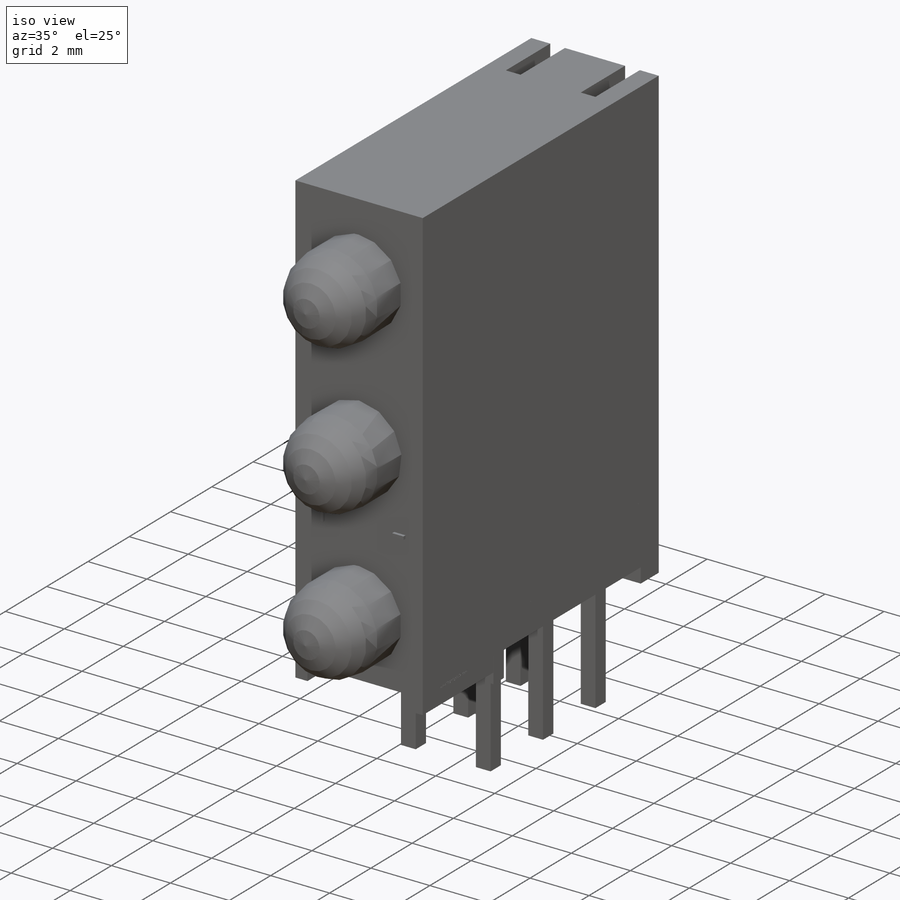
[diagram: iso view]
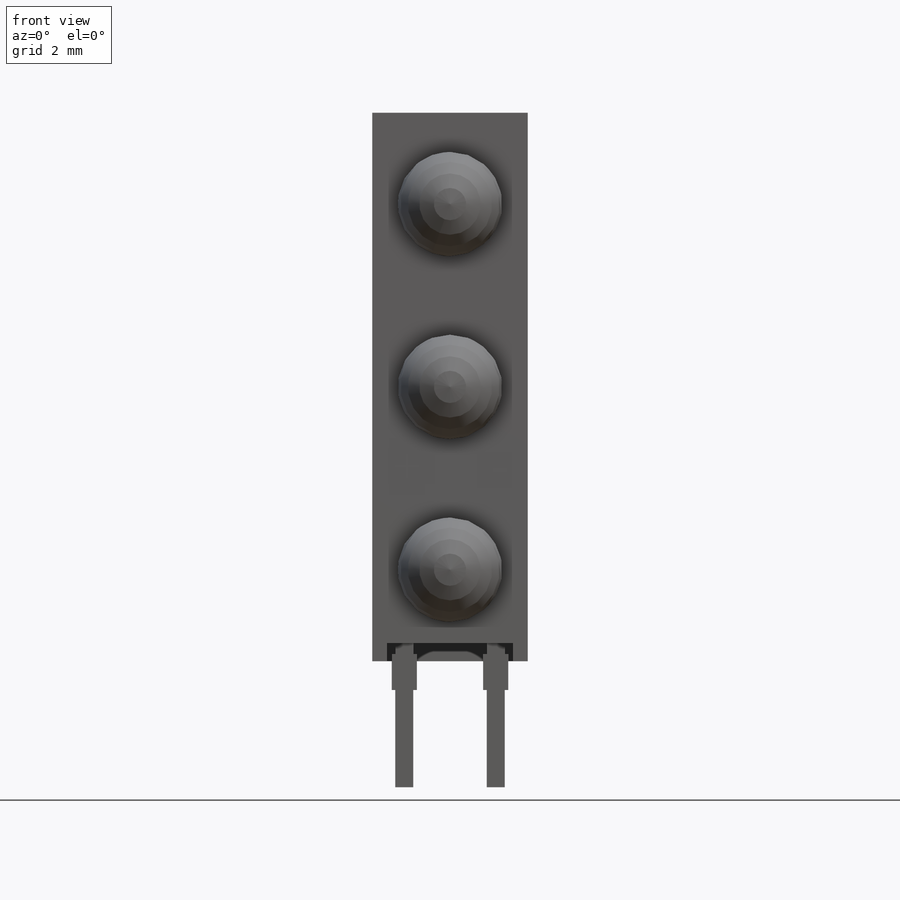
[diagram: front view]
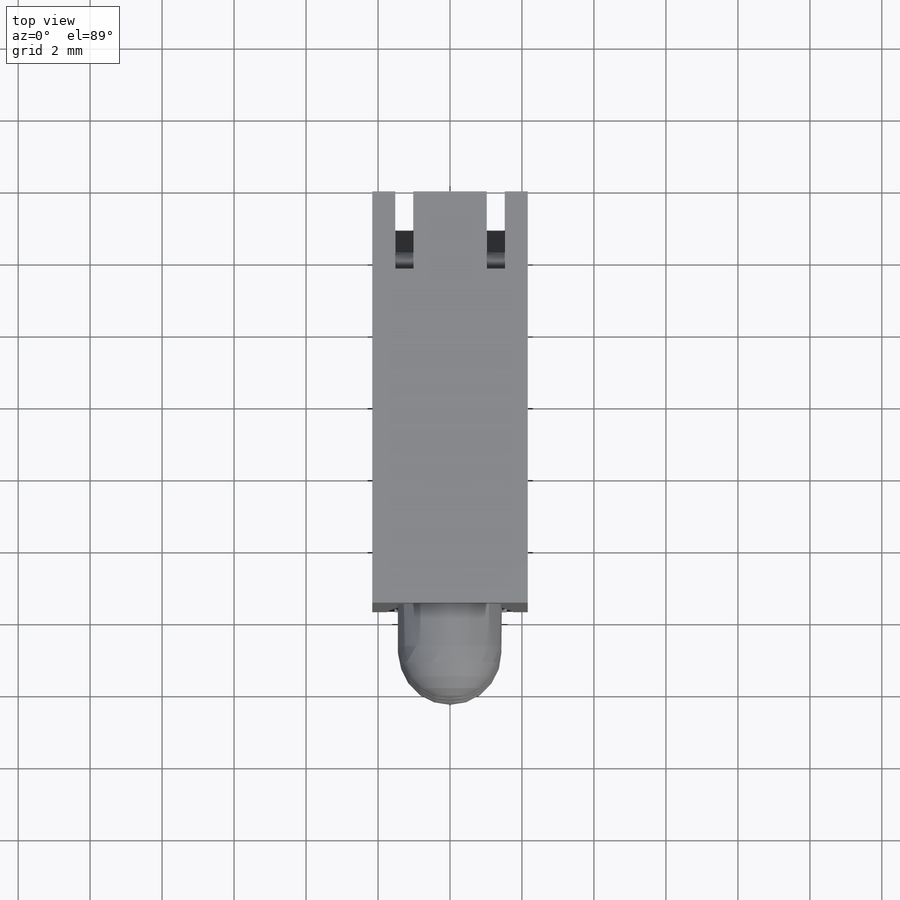
[diagram: top view]
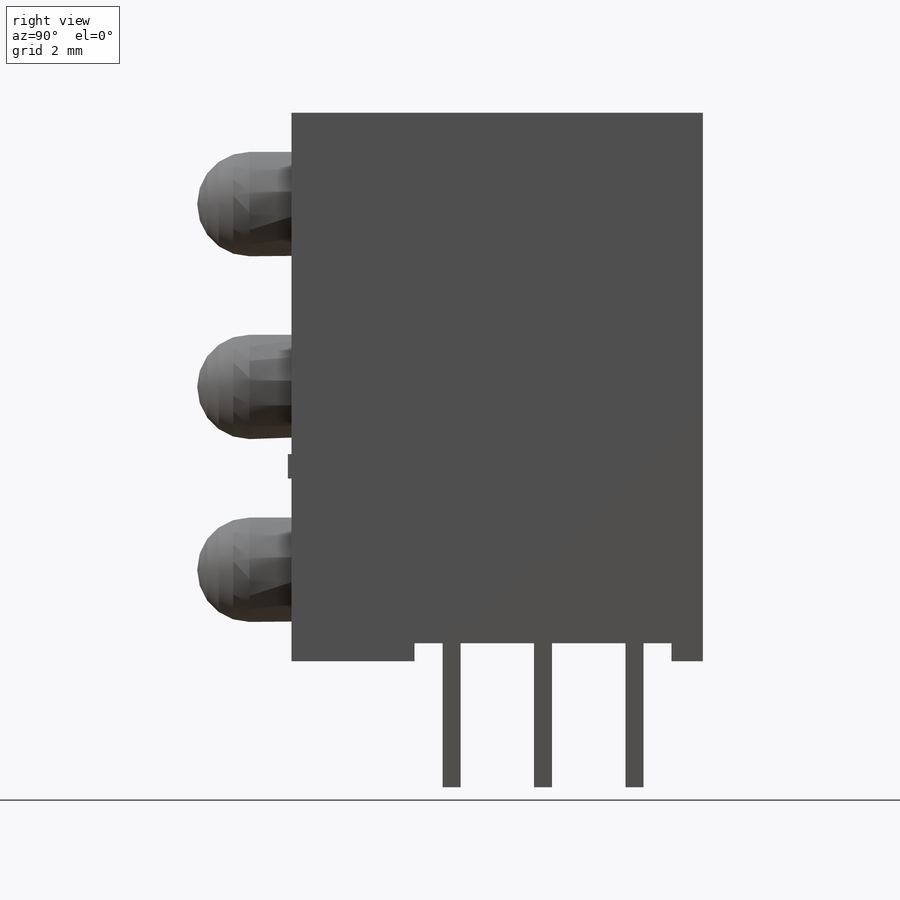
[diagram: right view]
SOLIDWORKS PART (.sldprt)
format: sldprt  version: not decoded by parser v0  size: 892,416 bytes
history: native  units: mm
features: sketch x14, extrude x8, revolve x3, cut_extrude x3, material x1, fillet x1 (+11 scaffold rows collapsed)
feature tree (41):
  scaffold x11  (default folders/planes/origin — collapsed)
  material  "Material <not specified>"
  sketch  "Sketch1"  dims[c1.D5=2.9mm c1.D6=2.9mm c1.D7=2.9mm c2.D5=2.9mm c2.D7=1.45mm c2.D9=1.45mm c2.D4=2.9mm c2.D1=11.43mm c2.D2=15.24mm c2.D3=0.5mm c3.D4=2.5mm c3.D8=3.0mm c3.D9=6.0mm c3.D10=6.0mm c3.D11=1.5mm c3.D12=7.14mm c3.D13=4.84mm c3.D14=2.5mm c3.D15=1.0mm c4.D11=1.0mm c4.D15=3.42mm c4.D14=2.0mm c4.D4=0.381mm c4.D5=15.24mm c5.D4=0.381mm c5.D6=0.381mm c6.D6=2.54deg c7.D6=5.08mm c7.D7=5.08mm c7.D8=2.54mm c7.D5=2.62mm c8.D6=2.543mm c8.D8=5.08mm c8.D9=5.08mm]
  extrude  "Extrude1"  Depth=4.32mm
  revolve  "Revolve1"  [1 undecoded]
  sketch  "Sketch1<3>"  dims[D1=360.0deg]
  revolve  "Revolve2"  [1 undecoded]
  sketch  "Sketch1<4>"  dims[D1=360.0deg]
  revolve  "Revolve3"  [1 undecoded]
  sketch  "Sketch1<5>"  dims[D1=360.0deg]
  cut_extrude  "Cut-Extrude1"  [1 undecoded]
  sketch  "Sketch1<6>"  dims[D1=3.5mm]
  extrude  "Extrude2"  [1 undecoded]
  sketch  "Sketch1<7>"  dims[D1=4.32mm]
  sketch  "Sketch2"  dims[c1.D1=9.0mm c1.D2=2.54mm c1.D3=2.54mm c1.D4=0.5mm c1.D5=0.5mm c2.D2=2.54mm c2.D3=2.54mm c2.D6=2.54mm c2.D1=4.45mm c3.D6=2.54mm]
  cut_extrude  "Cut-Extrude2"  [1 undecoded]
  extrude  "Extrude5"  [1 undecoded]
  sketch  "Sketch2<4>"
  fillet  "Fillet1"  Radius=0.5mm
  extrude  "Extrude10"  [1 undecoded]
  sketch  "Sketch1<8>"  dims[D1=4.32mm]
  extrude  "Extrude11"  [1 undecoded]
  sketch  "Sketch2<8>"
  extrude  "Extrude12"  [1 undecoded]
  sketch  "Sketch2<9>"  dims[D1=3.5mm]
  sketch  "Sketch3"
  extrude  "Extrude13"  Depth=0.1mm
  sketch  "Sketch5"  dims[D1=1.0mm D2=0.7mm D3=0.3mm]
  extrude  "Extrude14"  [1 undecoded]
  sketch  "Sketch6"  dims[D1=3.0mm D2=0.5mm]
  cut_extrude  "Cut-Extrude3"  Depth=0.01mm
decode coverage: 15 of 29 modeling features carry decoded parameters
note: 11 parameter values undecoded
summary: no parameter record found for 11 features
note: suppression state not decoded; provenance and decode notes live in map.json
